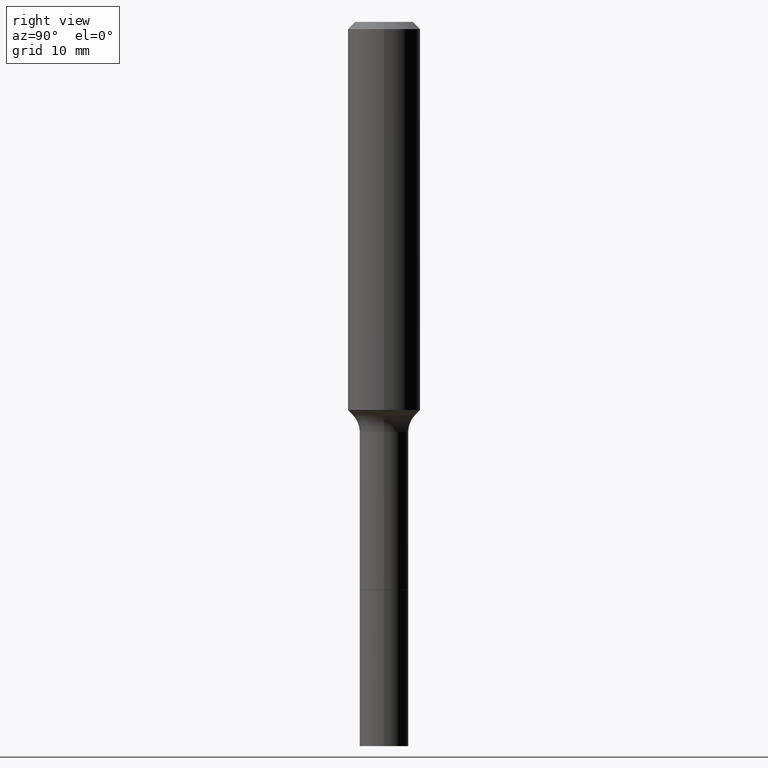
[diagram: clean part render]
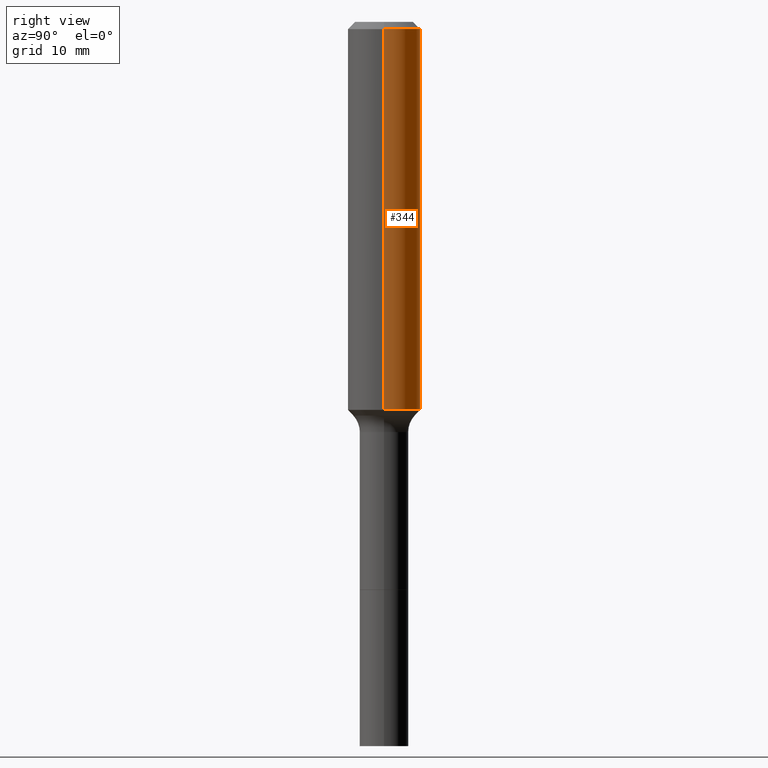
[diagram: same view with one face highlighted and labeled with its STEP entity id]
A machine part, right view. The second image highlights one B-rep face of the part: STEP entity #344.
In plain terms, the highlighted cylindrical surface (edge-blend (fillet) strip) has radius 2.9997 mm, axis along (-0, 0, 1).
Its self-contained STEP definition (entity closure, byte-faithful):
#28 = CARTESIAN_POINT ( 'NONE',  ( 0.1180999999999999966, -9.071566814582237199E-16, -0.02362000000000014435 ) ) ;
#38 = CYLINDRICAL_SURFACE ( 'NONE', #66, 0.1181000000000000660 ) ;
#46 = CIRCLE ( 'NONE', #243, 0.1180999999999999966 ) ;
#59 = DIRECTION ( 'NONE',  ( 1.000000000000000000, -6.982962677686264344E-15, 0.000000000000000000 ) ) ;
#66 = AXIS2_PLACEMENT_3D ( 'NONE', #199, #515, #161 ) ;
#76 = ORIENTED_EDGE ( 'NONE', *, *, #196, .F. ) ;
#80 = FACE_OUTER_BOUND ( 'NONE', #283, .T. ) ;
#81 = EDGE_CURVE ( 'NONE', #305, #238, #46, .T. ) ;
#84 = DIRECTION ( 'NONE',  ( -2.445468806185136597E-29, 3.491481338843145583E-15, 1.000000000000000000 ) ) ;
#99 = CARTESIAN_POINT ( 'NONE',  ( 3.094236346750236032E-29, -4.417749445555900568E-15, -1.265293729743851792 ) ) ;
#114 = CARTESIAN_POINT ( 'NONE',  ( 0.1181000000000000660, -8.246878922347485584E-16, 5.758764772215003944E-30 ) ) ;
#153 = CARTESIAN_POINT ( 'NONE',  ( 0.1181000000000001493, -5.242437337790650408E-15, -1.265293729743851792 ) ) ;
#155 = ORIENTED_EDGE ( 'NONE', *, *, #206, .T. ) ;
#161 = DIRECTION ( 'NONE',  ( 1.000000000000000000, -6.982962677686266711E-15, 4.876176775795936353E-29 ) ) ;
#176 = DIRECTION ( 'NONE',  ( -2.445468806185136597E-29, 3.491481338843145583E-15, 1.000000000000000000 ) ) ;
#181 = ORIENTED_EDGE ( 'NONE', *, *, #464, .T. ) ;
#196 = EDGE_CURVE ( 'NONE', #270, #305, #276, .T. ) ;
#199 = CARTESIAN_POINT ( 'NONE',  ( 0.000000000000000000, 0.000000000000000000, 0.000000000000000000 ) ) ;
#206 = EDGE_CURVE ( 'NONE', #426, #238, #460, .T. ) ;
#219 = AXIS2_PLACEMENT_3D ( 'NONE', #99, #176, #59 ) ;
#235 = CARTESIAN_POINT ( 'NONE',  ( -0.1181000000000000660, 8.391509709326787887E-16, -5.809262341591047287E-30 ) ) ;
#238 = VERTEX_POINT ( 'NONE', #355 ) ;
#243 = AXIS2_PLACEMENT_3D ( 'NONE', #438, #84, #361 ) ;
#268 = DIRECTION ( 'NONE',  ( -2.445468806185136877E-29, 3.491481338843145188E-15, 1.000000000000000000 ) ) ;
#270 = VERTEX_POINT ( 'NONE', #153 ) ;
#276 = LINE ( 'NONE', #114, #334 ) ;
#283 = EDGE_LOOP ( 'NONE', ( #181, #155, #429, #76 ) ) ;
#305 = VERTEX_POINT ( 'NONE', #28 ) ;
#306 = DIRECTION ( 'NONE',  ( -2.445468806185136877E-29, 3.491481338843145188E-15, 1.000000000000000000 ) ) ;
#312 = CIRCLE ( 'NONE', #219, 0.1181000000000001493 ) ;
#334 = VECTOR ( 'NONE', #268, 39.37007874015748143 ) ;
#344 = ADVANCED_FACE ( 'NONE', ( #80 ), #38, .T. ) ;
#355 = CARTESIAN_POINT ( 'NONE',  ( -0.1180999999999999966, -1.410958146457008829E-15, -0.02362000000000014435 ) ) ;
#361 = DIRECTION ( 'NONE',  ( 1.000000000000000000, -6.982962677686266711E-15, 0.000000000000000000 ) ) ;
#414 = VECTOR ( 'NONE', #306, 39.37007874015748143 ) ;
#426 = VERTEX_POINT ( 'NONE', #445 ) ;
#429 = ORIENTED_EDGE ( 'NONE', *, *, #81, .F. ) ;
#438 = CARTESIAN_POINT ( 'NONE',  ( 5.776197320209328408E-31, -8.246878922347560526E-17, -0.02362000000000014435 ) ) ;
#445 = CARTESIAN_POINT ( 'NONE',  ( -0.1181000000000001493, -3.578598474623221582E-15, -1.265293729743851792 ) ) ;
#460 = LINE ( 'NONE', #235, #414 ) ;
#464 = EDGE_CURVE ( 'NONE', #270, #426, #312, .T. ) ;
#515 = DIRECTION ( 'NONE',  ( -2.445468806185136597E-29, 3.491481338843145583E-15, 1.000000000000000000 ) ) ;